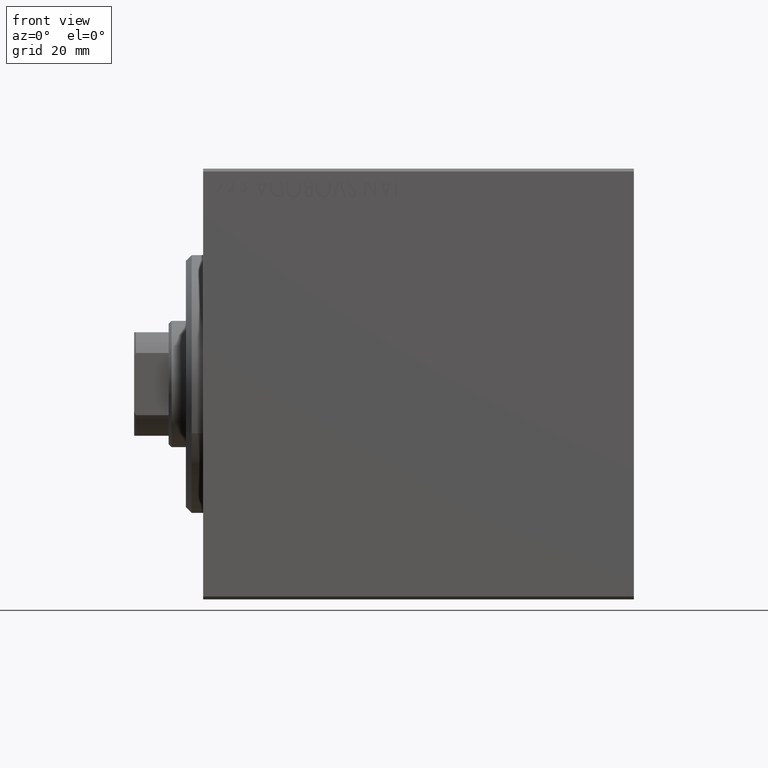
[diagram: clean part render]
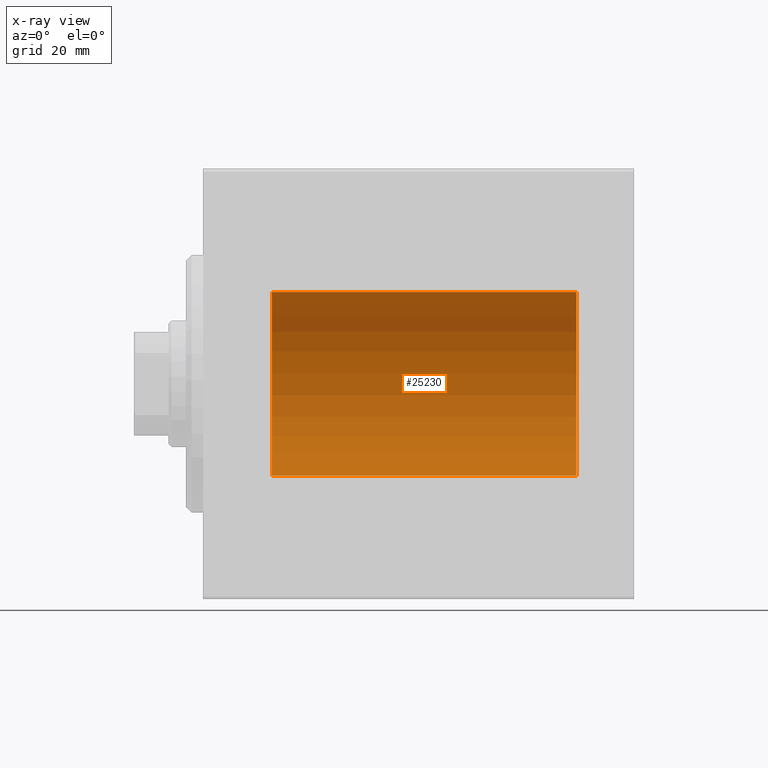
[diagram: x-ray — body ghosted, one internal face saturated and labeled with its STEP entity id]
A machine part, front view, then the same camera in x-ray: the body is ghosted and one INTERNAL B-rep face — a face not visible from any outside direction — is saturated and labeled: STEP entity #25230.
In plain terms, the highlighted cylindrical surface (partial cylindrical patch) has radius 16 mm, axis along (-1, -0, -0).
Its self-contained STEP definition (entity closure, byte-faithful):
#741 = DIRECTION ( 'NONE',  ( 0.000000000000000000, 0.000000000000000000, 1.000000000000000000 ) ) ;
#1224 = ORIENTED_EDGE ( 'NONE', *, *, #1401, .T. ) ;
#1401 = EDGE_CURVE ( 'NONE', #13107, #5179, #31527, .T. ) ;
#1760 = VERTEX_POINT ( 'NONE', #19742 ) ;
#2433 = DIRECTION ( 'NONE',  ( -1.000000000000000000, -0.000000000000000000, -0.000000000000000000 ) ) ;
#3521 = AXIS2_PLACEMENT_3D ( 'NONE', #20689, #24015, #37486 ) ;
#5179 = VERTEX_POINT ( 'NONE', #12887 ) ;
#5943 = CIRCLE ( 'NONE', #17947, 16.00000000000000000 ) ;
#5977 = VERTEX_POINT ( 'NONE', #11786 ) ;
#7228 = CARTESIAN_POINT ( 'NONE',  ( 65.00000000000000000, 0.000000000000000000, 16.00000000000000000 ) ) ;
#7467 = ORIENTED_EDGE ( 'NONE', *, *, #38083, .F. ) ;
#11786 = CARTESIAN_POINT ( 'NONE',  ( 65.00000000000000000, 1.959434878635765131E-15, -16.00000000000000000 ) ) ;
#11987 = DIRECTION ( 'NONE',  ( 0.000000000000000000, 0.000000000000000000, 1.000000000000000000 ) ) ;
#12887 = CARTESIAN_POINT ( 'NONE',  ( 11.99999999999999645, 0.000000000000000000, 16.00000000000000000 ) ) ;
#13107 = VERTEX_POINT ( 'NONE', #39512 ) ;
#14446 = DIRECTION ( 'NONE',  ( -1.000000000000000000, 0.000000000000000000, 0.000000000000000000 ) ) ;
#17254 = VECTOR ( 'NONE', #2433, 1000.000000000000000 ) ;
#17947 = AXIS2_PLACEMENT_3D ( 'NONE', #31668, #14446, #741 ) ;
#18508 = ORIENTED_EDGE ( 'NONE', *, *, #34033, .F. ) ;
#18759 = AXIS2_PLACEMENT_3D ( 'NONE', #32101, #42065, #11987 ) ;
#19742 = CARTESIAN_POINT ( 'NONE',  ( 11.99999999999999645, 1.959434878635765131E-15, -16.00000000000000000 ) ) ;
#20689 = CARTESIAN_POINT ( 'NONE',  ( 65.00000000000000000, 0.000000000000000000, 0.000000000000000000 ) ) ;
#20711 = DIRECTION ( 'NONE',  ( -1.000000000000000000, -0.000000000000000000, -0.000000000000000000 ) ) ;
#20910 = CYLINDRICAL_SURFACE ( 'NONE', #3521, 16.00000000000000000 ) ;
#22549 = LINE ( 'NONE', #36024, #17254 ) ;
#24015 = DIRECTION ( 'NONE',  ( -1.000000000000000000, -0.000000000000000000, -0.000000000000000000 ) ) ;
#25230 = ADVANCED_FACE ( 'NONE', ( #37701 ), #20910, .F. ) ;
#25241 = ORIENTED_EDGE ( 'NONE', *, *, #32871, .T. ) ;
#31527 = LINE ( 'NONE', #7228, #41260 ) ;
#31668 = CARTESIAN_POINT ( 'NONE',  ( 11.99999999999999645, 0.000000000000000000, 0.000000000000000000 ) ) ;
#32101 = CARTESIAN_POINT ( 'NONE',  ( 65.00000000000000000, 0.000000000000000000, 0.000000000000000000 ) ) ;
#32871 = EDGE_CURVE ( 'NONE', #5179, #1760, #5943, .T. ) ;
#34033 = EDGE_CURVE ( 'NONE', #5977, #1760, #22549, .T. ) ;
#36024 = CARTESIAN_POINT ( 'NONE',  ( 65.00000000000000000, 1.959434878635765131E-15, -16.00000000000000000 ) ) ;
#36399 = CIRCLE ( 'NONE', #18759, 16.00000000000000000 ) ;
#37486 = DIRECTION ( 'NONE',  ( 0.000000000000000000, 0.000000000000000000, 1.000000000000000000 ) ) ;
#37701 = FACE_OUTER_BOUND ( 'NONE', #39543, .T. ) ;
#38083 = EDGE_CURVE ( 'NONE', #13107, #5977, #36399, .T. ) ;
#39512 = CARTESIAN_POINT ( 'NONE',  ( 65.00000000000000000, 0.000000000000000000, 16.00000000000000000 ) ) ;
#39543 = EDGE_LOOP ( 'NONE', ( #18508, #7467, #1224, #25241 ) ) ;
#41260 = VECTOR ( 'NONE', #20711, 1000.000000000000000 ) ;
#42065 = DIRECTION ( 'NONE',  ( -1.000000000000000000, 0.000000000000000000, 0.000000000000000000 ) ) ;